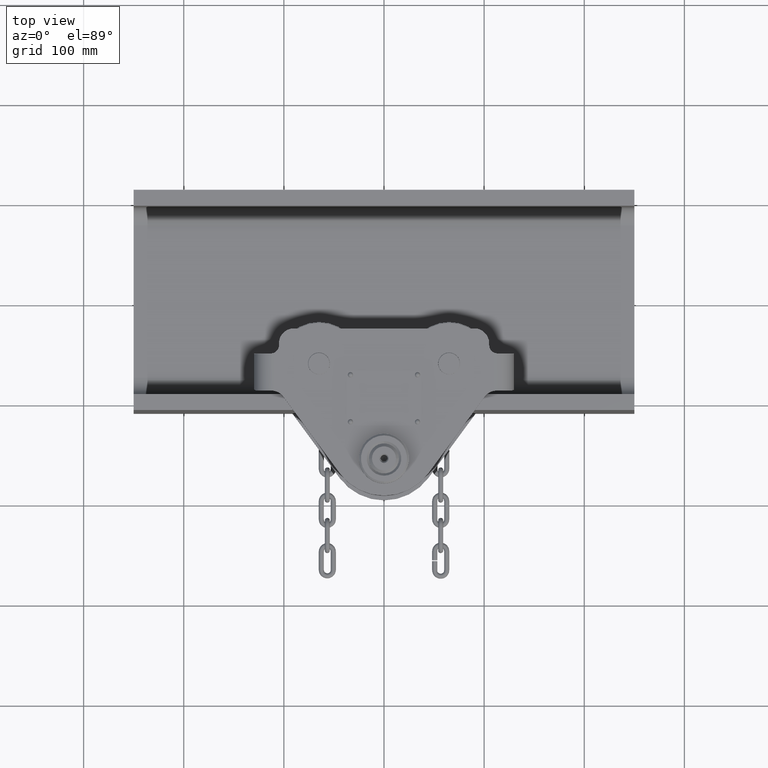
[diagram: clean part render]
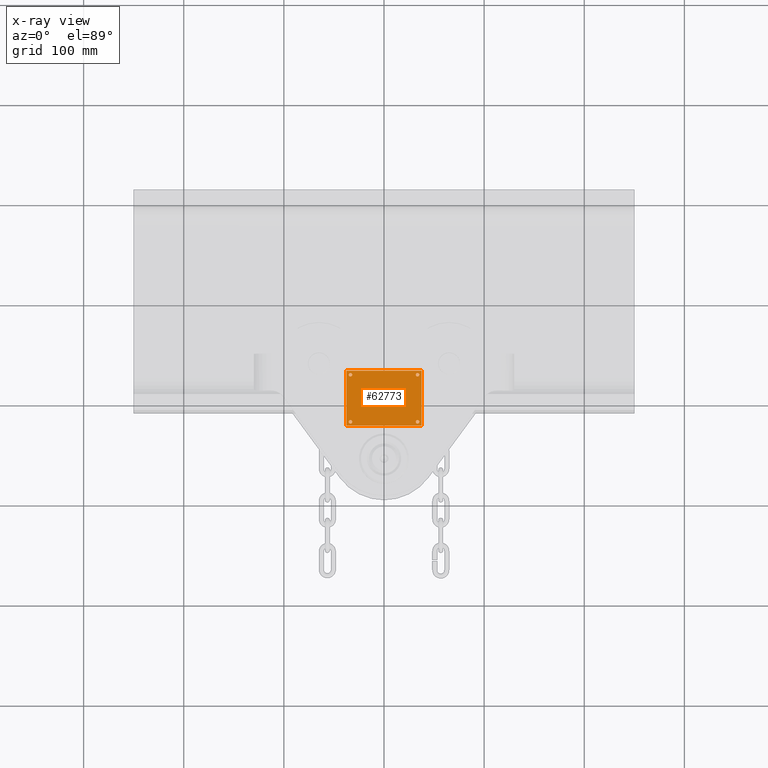
[diagram: x-ray — body ghosted, one internal face saturated and labeled with its STEP entity id]
A machine part, top view, then the same camera in x-ray: the body is ghosted and one INTERNAL B-rep face — a face not visible from any outside direction — is saturated and labeled: STEP entity #62773.
In plain terms, the highlighted planar face has unit normal (0, 0, -1).
Its self-contained STEP definition (entity closure, byte-faithful):
#173 = VERTEX_POINT ( 'NONE', #31562 ) ;
#275 = EDGE_CURVE ( 'NONE', #81249, #68920, #90705, .T. ) ;
#2373 = ORIENTED_EDGE ( 'NONE', *, *, #17795, .T. ) ;
#2953 = DIRECTION ( 'NONE',  ( 1.000000000000000000, 0.0000000000000000000, 0.0000000000000000000 ) ) ;
#3038 = EDGE_LOOP ( 'NONE', ( #95838, #5881 ) ) ;
#4709 = AXIS2_PLACEMENT_3D ( 'NONE', #28409, #84651, #68285 ) ;
#5881 = ORIENTED_EDGE ( 'NONE', *, *, #65568, .T. ) ;
#6238 = ORIENTED_EDGE ( 'NONE', *, *, #70691, .T. ) ;
#6694 = EDGE_CURVE ( 'NONE', #38817, #88251, #62672, .T. ) ;
#6696 = CARTESIAN_POINT ( 'NONE',  ( 33.50000000000001400, -75.29903241440975100, 135.0000000000000000 ) ) ;
#7574 = EDGE_LOOP ( 'NONE', ( #63945, #75094, #80656, #46496 ) ) ;
#7759 = DIRECTION ( 'NONE',  ( 1.000000000000000000, 0.0000000000000000000, 0.0000000000000000000 ) ) ;
#8415 = CARTESIAN_POINT ( 'NONE',  ( -37.49999999999999300, -126.2990324144097700, 135.0000000000000000 ) ) ;
#10835 = DIRECTION ( 'NONE',  ( 0.0000000000000000000, 0.0000000000000000000, 1.000000000000000000 ) ) ;
#15998 = AXIS2_PLACEMENT_3D ( 'NONE', #57622, #65317, #80605 ) ;
#16043 = EDGE_CURVE ( 'NONE', #173, #64523, #35031, .T. ) ;
#17279 = ORIENTED_EDGE ( 'NONE', *, *, #16043, .T. ) ;
#17795 = EDGE_CURVE ( 'NONE', #34956, #102659, #38665, .T. ) ;
#19395 = EDGE_LOOP ( 'NONE', ( #6238, #2373 ) ) ;
#20159 = DIRECTION ( 'NONE',  ( 1.000000000000000000, 0.0000000000000000000, 0.0000000000000000000 ) ) ;
#20406 = FACE_BOUND ( 'NONE', #19395, .T. ) ;
#20502 = CARTESIAN_POINT ( 'NONE',  ( 33.50000000000001400, -75.29903241440975100, 135.0000000000000000 ) ) ;
#20538 = VERTEX_POINT ( 'NONE', #99963 ) ;
#20608 = EDGE_LOOP ( 'NONE', ( #17279, #37682 ) ) ;
#22749 = AXIS2_PLACEMENT_3D ( 'NONE', #64382, #33327, #7759 ) ;
#24496 = EDGE_CURVE ( 'NONE', #64523, #173, #95572, .T. ) ;
#25036 = VERTEX_POINT ( 'NONE', #32963 ) ;
#25113 = VERTEX_POINT ( 'NONE', #98201 ) ;
#27962 = CARTESIAN_POINT ( 'NONE',  ( 37.50000000000002100, -126.2990324144097700, 135.0000000000000000 ) ) ;
#28292 = VECTOR ( 'NONE', #39150, 1000.000000000000000 ) ;
#28409 = CARTESIAN_POINT ( 'NONE',  ( 33.50000000000001400, -122.2990324144097700, 135.0000000000000000 ) ) ;
#30820 = VECTOR ( 'NONE', #46705, 1000.000000000000000 ) ;
#31562 = CARTESIAN_POINT ( 'NONE',  ( -31.74999999999998600, -122.2990324144097700, 135.0000000000000000 ) ) ;
#32963 = CARTESIAN_POINT ( 'NONE',  ( 31.75000000000002100, -122.2990324144097700, 135.0000000000000000 ) ) ;
#33327 = DIRECTION ( 'NONE',  ( 0.0000000000000000000, 0.0000000000000000000, 1.000000000000000000 ) ) ;
#34037 = DIRECTION ( 'NONE',  ( 1.000000000000000000, 0.0000000000000000000, 0.0000000000000000000 ) ) ;
#34956 = VERTEX_POINT ( 'NONE', #99128 ) ;
#35031 = CIRCLE ( 'NONE', #98275, 1.750000000000001600 ) ;
#36325 = ORIENTED_EDGE ( 'NONE', *, *, #38437, .T. ) ;
#36448 = DIRECTION ( 'NONE',  ( 0.0000000000000000000, 0.0000000000000000000, -1.000000000000000000 ) ) ;
#37682 = ORIENTED_EDGE ( 'NONE', *, *, #24496, .T. ) ;
#38437 = EDGE_CURVE ( 'NONE', #88251, #38817, #44711, .T. ) ;
#38665 = CIRCLE ( 'NONE', #65738, 1.750000000000001600 ) ;
#38817 = VERTEX_POINT ( 'NONE', #102268 ) ;
#39150 = DIRECTION ( 'NONE',  ( -1.000000000000000000, -0.0000000000000000000, -0.0000000000000000000 ) ) ;
#40848 = LINE ( 'NONE', #77485, #30820 ) ;
#41971 = AXIS2_PLACEMENT_3D ( 'NONE', #98928, #36448, #76234 ) ;
#42162 = EDGE_CURVE ( 'NONE', #25113, #20538, #45861, .T. ) ;
#43166 = CARTESIAN_POINT ( 'NONE',  ( -33.49999999999998600, -122.2990324144097700, 135.0000000000000000 ) ) ;
#43860 = EDGE_CURVE ( 'NONE', #20538, #81249, #40848, .T. ) ;
#44711 = CIRCLE ( 'NONE', #94886, 1.749999999999994700 ) ;
#45455 = FACE_BOUND ( 'NONE', #3038, .T. ) ;
#45861 = LINE ( 'NONE', #77586, #28292 ) ;
#46496 = ORIENTED_EDGE ( 'NONE', *, *, #275, .F. ) ;
#46580 = AXIS2_PLACEMENT_3D ( 'NONE', #43166, #50832, #2953 ) ;
#46705 = DIRECTION ( 'NONE',  ( -0.0000000000000000000, -1.000000000000000000, -0.0000000000000000000 ) ) ;
#47249 = EDGE_LOOP ( 'NONE', ( #100730, #36325 ) ) ;
#48181 = VECTOR ( 'NONE', #88495, 1000.000000000000000 ) ;
#50832 = DIRECTION ( 'NONE',  ( 0.0000000000000000000, 0.0000000000000000000, 1.000000000000000000 ) ) ;
#52096 = EDGE_CURVE ( 'NONE', #80407, #25036, #93001, .T. ) ;
#52796 = DIRECTION ( 'NONE',  ( 1.000000000000000000, 0.0000000000000000000, 0.0000000000000000000 ) ) ;
#53515 = CARTESIAN_POINT ( 'NONE',  ( 31.75000000000002100, -75.29903241440975100, 135.0000000000000000 ) ) ;
#55484 = FACE_OUTER_BOUND ( 'NONE', #7574, .T. ) ;
#57622 = CARTESIAN_POINT ( 'NONE',  ( -33.49999999999998600, -75.29903241440975100, 135.0000000000000000 ) ) ;
#59496 = CARTESIAN_POINT ( 'NONE',  ( 37.50000000000002100, -126.2990324144097700, 135.0000000000000000 ) ) ;
#59861 = CARTESIAN_POINT ( 'NONE',  ( 35.25000000000000700, -122.2990324144097700, 135.0000000000000000 ) ) ;
#60451 = FACE_BOUND ( 'NONE', #47249, .T. ) ;
#62184 = CARTESIAN_POINT ( 'NONE',  ( -33.49999999999998600, -122.2990324144097700, 135.0000000000000000 ) ) ;
#62278 = DIRECTION ( 'NONE',  ( 1.000000000000000000, 0.0000000000000000000, 0.0000000000000000000 ) ) ;
#62672 = CIRCLE ( 'NONE', #73283, 1.749999999999994700 ) ;
#62773 = ADVANCED_FACE ( 'NONE', ( #45455, #71714, #60451, #20406, #55484 ), #91923, .T. ) ;
#63945 = ORIENTED_EDGE ( 'NONE', *, *, #43860, .F. ) ;
#64382 = CARTESIAN_POINT ( 'NONE',  ( 33.50000000000001400, -122.2990324144097700, 135.0000000000000000 ) ) ;
#64523 = VERTEX_POINT ( 'NONE', #100574 ) ;
#65317 = DIRECTION ( 'NONE',  ( 0.0000000000000000000, 0.0000000000000000000, 1.000000000000000000 ) ) ;
#65568 = EDGE_CURVE ( 'NONE', #25036, #80407, #97803, .T. ) ;
#65738 = AXIS2_PLACEMENT_3D ( 'NONE', #81842, #10835, #34037 ) ;
#67421 = VECTOR ( 'NONE', #91235, 1000.000000000000000 ) ;
#67587 = CARTESIAN_POINT ( 'NONE',  ( -37.49999999999999300, -126.2990324144097700, 135.0000000000000000 ) ) ;
#68285 = DIRECTION ( 'NONE',  ( 1.000000000000000000, 0.0000000000000000000, 0.0000000000000000000 ) ) ;
#68920 = VERTEX_POINT ( 'NONE', #59496 ) ;
#70691 = EDGE_CURVE ( 'NONE', #102659, #34956, #82113, .T. ) ;
#71023 = DIRECTION ( 'NONE',  ( 0.0000000000000000000, 0.0000000000000000000, 1.000000000000000000 ) ) ;
#71714 = FACE_BOUND ( 'NONE', #20608, .T. ) ;
#73283 = AXIS2_PLACEMENT_3D ( 'NONE', #6696, #71023, #62278 ) ;
#75094 = ORIENTED_EDGE ( 'NONE', *, *, #42162, .F. ) ;
#76234 = DIRECTION ( 'NONE',  ( -1.000000000000000000, 0.0000000000000000000, -0.0000000000000000000 ) ) ;
#76506 = DIRECTION ( 'NONE',  ( 0.0000000000000000000, 0.0000000000000000000, 1.000000000000000000 ) ) ;
#77485 = CARTESIAN_POINT ( 'NONE',  ( -37.49999999999999300, -126.2990324144097700, 135.0000000000000000 ) ) ;
#77586 = CARTESIAN_POINT ( 'NONE',  ( -37.49999999999999300, -71.29903241440976600, 135.0000000000000000 ) ) ;
#80407 = VERTEX_POINT ( 'NONE', #59861 ) ;
#80605 = DIRECTION ( 'NONE',  ( 1.000000000000000000, 0.0000000000000000000, 0.0000000000000000000 ) ) ;
#80656 = ORIENTED_EDGE ( 'NONE', *, *, #82564, .F. ) ;
#81249 = VERTEX_POINT ( 'NONE', #67587 ) ;
#81842 = CARTESIAN_POINT ( 'NONE',  ( -33.49999999999998600, -75.29903241440975100, 135.0000000000000000 ) ) ;
#82113 = CIRCLE ( 'NONE', #15998, 1.750000000000001600 ) ;
#82564 = EDGE_CURVE ( 'NONE', #68920, #25113, #102295, .T. ) ;
#84651 = DIRECTION ( 'NONE',  ( 0.0000000000000000000, 0.0000000000000000000, 1.000000000000000000 ) ) ;
#86437 = CARTESIAN_POINT ( 'NONE',  ( -31.74999999999998600, -75.29903241440975100, 135.0000000000000000 ) ) ;
#88251 = VERTEX_POINT ( 'NONE', #53515 ) ;
#88495 = DIRECTION ( 'NONE',  ( 1.000000000000000000, 0.0000000000000000000, 0.0000000000000000000 ) ) ;
#90705 = LINE ( 'NONE', #8415, #48181 ) ;
#91235 = DIRECTION ( 'NONE',  ( 0.0000000000000000000, 1.000000000000000000, 0.0000000000000000000 ) ) ;
#91923 = PLANE ( 'NONE',  #41971 ) ;
#93001 = CIRCLE ( 'NONE', #22749, 1.749999999999994700 ) ;
#94886 = AXIS2_PLACEMENT_3D ( 'NONE', #20502, #76506, #20159 ) ;
#95572 = CIRCLE ( 'NONE', #46580, 1.750000000000001600 ) ;
#95838 = ORIENTED_EDGE ( 'NONE', *, *, #52096, .T. ) ;
#97803 = CIRCLE ( 'NONE', #4709, 1.749999999999994700 ) ;
#98201 = CARTESIAN_POINT ( 'NONE',  ( 37.50000000000002100, -71.29903241440976600, 135.0000000000000000 ) ) ;
#98275 = AXIS2_PLACEMENT_3D ( 'NONE', #62184, #100612, #52796 ) ;
#98928 = CARTESIAN_POINT ( 'NONE',  ( -37.49999999999999300, -71.29903241440976600, 135.0000000000000000 ) ) ;
#99128 = CARTESIAN_POINT ( 'NONE',  ( -35.24999999999999300, -75.29903241440975100, 135.0000000000000000 ) ) ;
#99963 = CARTESIAN_POINT ( 'NONE',  ( -37.49999999999999300, -71.29903241440976600, 135.0000000000000000 ) ) ;
#100574 = CARTESIAN_POINT ( 'NONE',  ( -35.24999999999999300, -122.2990324144097700, 135.0000000000000000 ) ) ;
#100612 = DIRECTION ( 'NONE',  ( 0.0000000000000000000, 0.0000000000000000000, 1.000000000000000000 ) ) ;
#100730 = ORIENTED_EDGE ( 'NONE', *, *, #6694, .T. ) ;
#102268 = CARTESIAN_POINT ( 'NONE',  ( 35.25000000000000700, -75.29903241440975100, 135.0000000000000000 ) ) ;
#102295 = LINE ( 'NONE', #27962, #67421 ) ;
#102659 = VERTEX_POINT ( 'NONE', #86437 ) ;